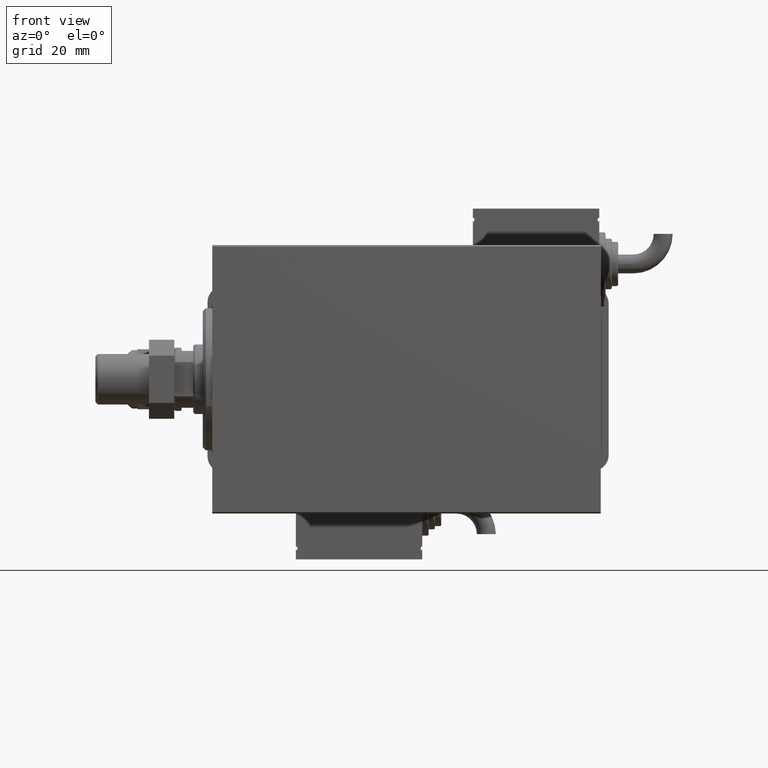
[diagram: clean part render]
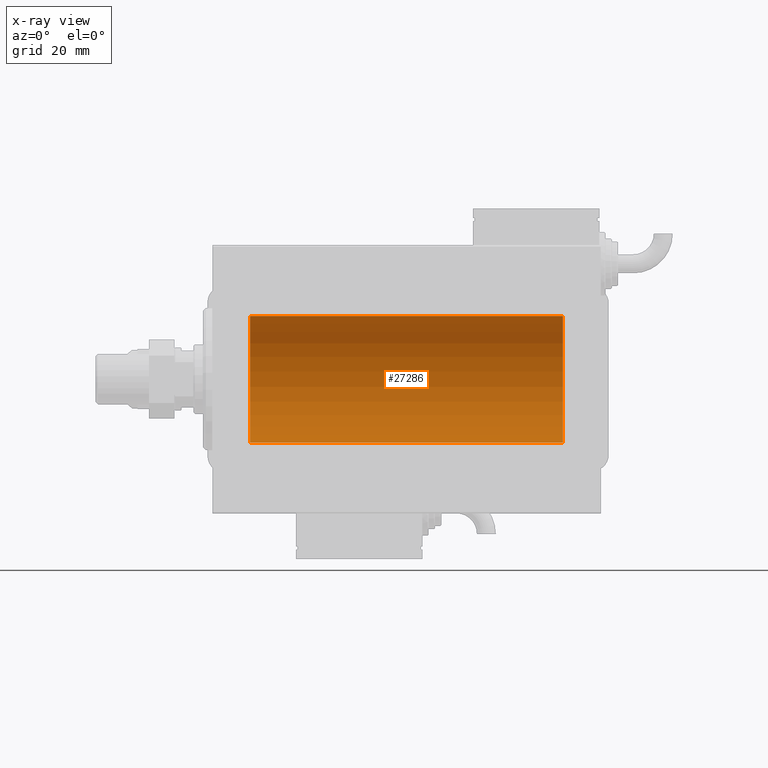
[diagram: x-ray — body ghosted, one internal face saturated and labeled with its STEP entity id]
A machine part, front view, then the same camera in x-ray: the body is ghosted and one INTERNAL B-rep face — a face not visible from any outside direction — is saturated and labeled: STEP entity #27286.
In plain terms, the highlighted cylindrical surface (partial cylindrical patch) has radius 20 mm, axis along (-1, -0, -0).
Its self-contained STEP definition (entity closure, byte-faithful):
#3838 = DIRECTION ( 'NONE',  ( -1.000000000000000000, 0.000000000000000000, 0.000000000000000000 ) ) ;
#3911 = ORIENTED_EDGE ( 'NONE', *, *, #28647, .T. ) ;
#4493 = DIRECTION ( 'NONE',  ( -1.000000000000000000, -0.000000000000000000, -0.000000000000000000 ) ) ;
#5099 = FACE_OUTER_BOUND ( 'NONE', #35343, .T. ) ;
#6668 = CARTESIAN_POINT ( 'NONE',  ( 111.0000000000000000, 0.000000000000000000, 20.00000000000000000 ) ) ;
#8316 = CARTESIAN_POINT ( 'NONE',  ( 11.99999999999999645, 2.449293598294706513E-15, -20.00000000000000000 ) ) ;
#11403 = CARTESIAN_POINT ( 'NONE',  ( 11.99999999999999645, 0.000000000000000000, 0.000000000000000000 ) ) ;
#12771 = LINE ( 'NONE', #26672, #14410 ) ;
#13692 = EDGE_CURVE ( 'NONE', #49892, #37102, #48208, .T. ) ;
#14410 = VECTOR ( 'NONE', #41519, 1000.000000000000000 ) ;
#15106 = AXIS2_PLACEMENT_3D ( 'NONE', #45381, #3838, #25975 ) ;
#17244 = EDGE_CURVE ( 'NONE', #48689, #48243, #12771, .T. ) ;
#20280 = CIRCLE ( 'NONE', #54214, 20.00000000000000000 ) ;
#22037 = ORIENTED_EDGE ( 'NONE', *, *, #13692, .T. ) ;
#23581 = DIRECTION ( 'NONE',  ( 0.000000000000000000, 0.000000000000000000, 1.000000000000000000 ) ) ;
#24873 = ORIENTED_EDGE ( 'NONE', *, *, #17244, .F. ) ;
#25975 = DIRECTION ( 'NONE',  ( 0.000000000000000000, 0.000000000000000000, 1.000000000000000000 ) ) ;
#26672 = CARTESIAN_POINT ( 'NONE',  ( 111.0000000000000000, 2.449293598294706513E-15, -20.00000000000000000 ) ) ;
#27161 = CARTESIAN_POINT ( 'NONE',  ( 111.0000000000000000, 2.449293598294706513E-15, -20.00000000000000000 ) ) ;
#27286 = ADVANCED_FACE ( 'NONE', ( #5099 ), #51193, .F. ) ;
#27467 = ORIENTED_EDGE ( 'NONE', *, *, #47715, .F. ) ;
#28647 = EDGE_CURVE ( 'NONE', #37102, #48243, #20280, .T. ) ;
#35343 = EDGE_LOOP ( 'NONE', ( #24873, #27467, #22037, #3911 ) ) ;
#35423 = CARTESIAN_POINT ( 'NONE',  ( 111.0000000000000000, 0.000000000000000000, 20.00000000000000000 ) ) ;
#37102 = VERTEX_POINT ( 'NONE', #52976 ) ;
#37892 = AXIS2_PLACEMENT_3D ( 'NONE', #46040, #4493, #23581 ) ;
#41519 = DIRECTION ( 'NONE',  ( -1.000000000000000000, -0.000000000000000000, -0.000000000000000000 ) ) ;
#43223 = DIRECTION ( 'NONE',  ( 0.000000000000000000, 0.000000000000000000, 1.000000000000000000 ) ) ;
#43666 = DIRECTION ( 'NONE',  ( -1.000000000000000000, -0.000000000000000000, -0.000000000000000000 ) ) ;
#45381 = CARTESIAN_POINT ( 'NONE',  ( 111.0000000000000000, 0.000000000000000000, 0.000000000000000000 ) ) ;
#46040 = CARTESIAN_POINT ( 'NONE',  ( 111.0000000000000000, 0.000000000000000000, 0.000000000000000000 ) ) ;
#47715 = EDGE_CURVE ( 'NONE', #49892, #48689, #48858, .T. ) ;
#47766 = DIRECTION ( 'NONE',  ( -1.000000000000000000, 0.000000000000000000, 0.000000000000000000 ) ) ;
#48208 = LINE ( 'NONE', #6668, #56904 ) ;
#48243 = VERTEX_POINT ( 'NONE', #8316 ) ;
#48689 = VERTEX_POINT ( 'NONE', #27161 ) ;
#48858 = CIRCLE ( 'NONE', #15106, 20.00000000000000000 ) ;
#49892 = VERTEX_POINT ( 'NONE', #35423 ) ;
#51193 = CYLINDRICAL_SURFACE ( 'NONE', #37892, 20.00000000000000000 ) ;
#52976 = CARTESIAN_POINT ( 'NONE',  ( 11.99999999999999645, 0.000000000000000000, 20.00000000000000000 ) ) ;
#54214 = AXIS2_PLACEMENT_3D ( 'NONE', #11403, #47766, #43223 ) ;
#56904 = VECTOR ( 'NONE', #43666, 1000.000000000000000 ) ;